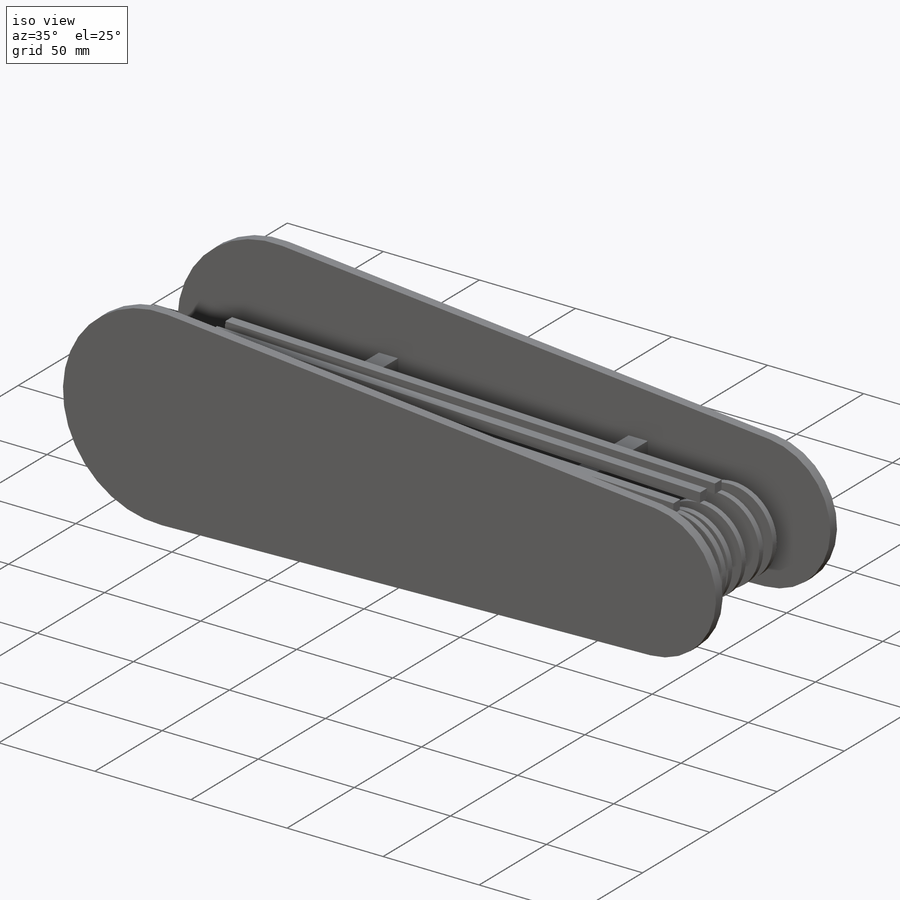
[diagram: iso view]
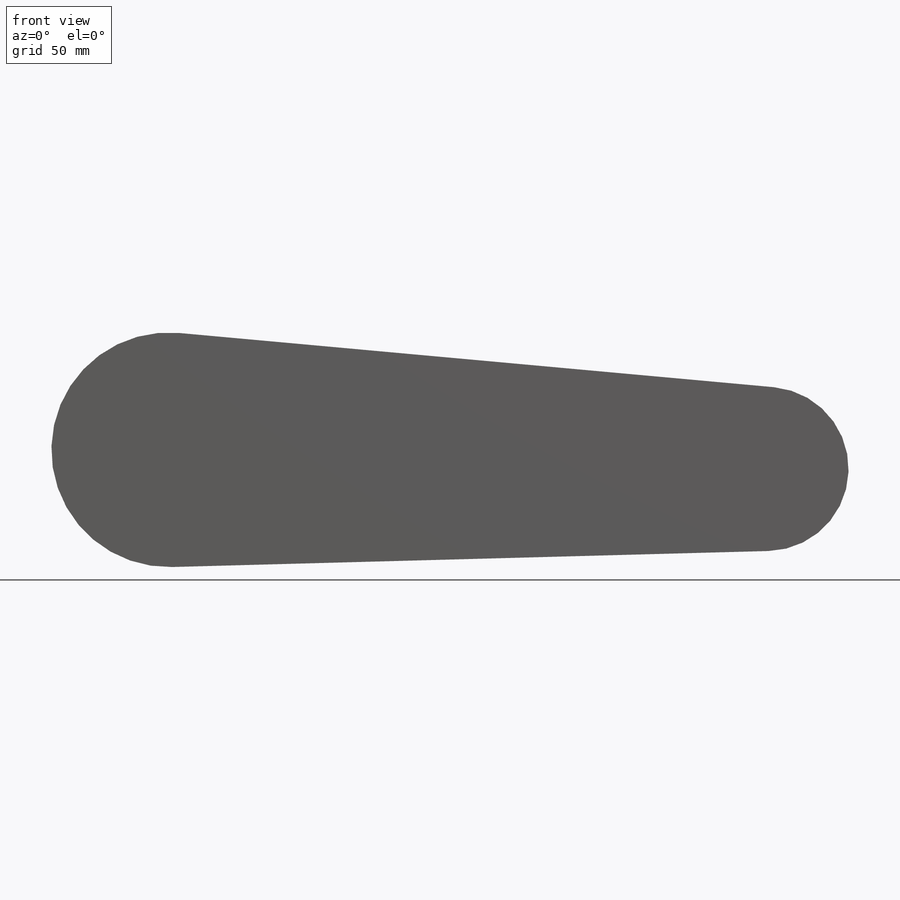
[diagram: front view]
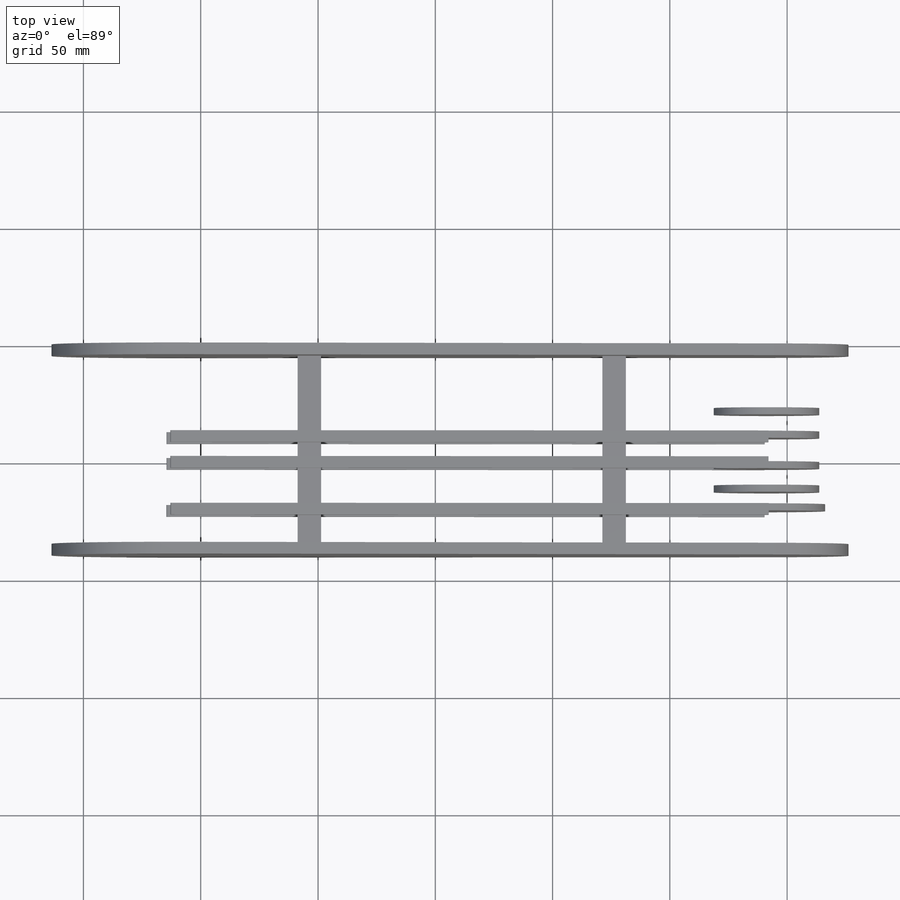
[diagram: top view]
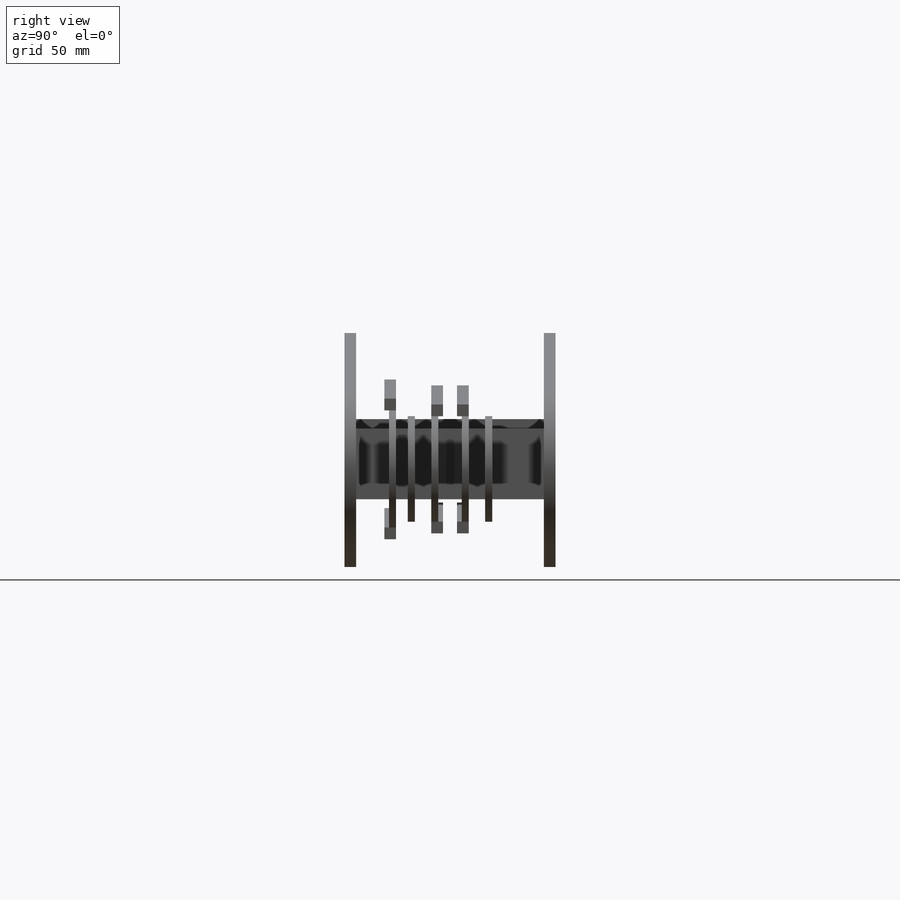
[diagram: right view]
SOLIDWORKS PART (.sldprt)
format: sldprt  version: not decoded by parser v0  size: 501,760 bytes
history: native  units: mm
features: move_body x16, extrude x12, sketch x4, material x1, cut_extrude x1 + 16 further entries (+58 scaffold rows collapsed; 46 parser-record rows omitted)
feature tree (154):
  scaffold x58  (default folders/planes/origin — collapsed)
  material  "1060 Alloy"
  sketch  "Sketch1"  dims[D1=255.0mm]
  extrude  "Boss-Extrude1"  Depth=90mm
  sketch  "Sketch3"  dims[D1=80.0mm]
  cut_extrude  "Cut-Extrude1"  Depth=164mm
  sketch  "Sketch4"  dims[D1=30.0mm]
  extrude  "Boss-Extrude2"  Depth=80mm
  "gear1"
  parser-record x46  (decoder bookkeeping rows leaked as tree rows — omitted from the tree; the rows remain in map.json)
  extrude  "gear12"  [1 undecoded]
  "Axes2"
  extrude  "gear13"  [1 undecoded]
  "Axes3"
  extrude  "gear14"  [1 undecoded]
  "Axes4"
  move_body  "Body-Move/Copy1"
  move_body  "Body-Move/Copy2"
  move_body  "Body-Move/Copy3"
  move_body  "Body-Move/Copy4"
  extrude  "gear2"  [1 undecoded]
  "Axes5"
  move_body  "Body-Move/Copy5"
  extrude  "chain"  [1 undecoded]
  "Axes6"
  sketch  "Sketch5"
  move_body  "Body-Move/Copy6"
  extrude  "chain1"  [1 undecoded]
  "Axes7"
  move_body  "Body-Move/Copy7"
  "Tangent2"
  move_body  "Parallel2"
  extrude  "chain2"  [1 undecoded]
  "Axes8"
  move_body  "Body-Move/Copy8"
  move_body  "Parallel3"
  "Tangent4"
  extrude  "chain3"  [1 undecoded]
  "Axes9"
  move_body  "Body-Move/Copy9"
  move_body  "Parallel4"
  "Tangent5"
  extrude  "chain4"  [1 undecoded]
  "Axes10"
  move_body  "Body-Move/Copy10"
  move_body  "Parallel5"
  "Tangent6"
  extrude  "chain5"  [1 undecoded]
  "Axes11"
  move_body  "Body-Move/Copy11"
  move_body  "Parallel6"
  "Tangent7"
decode coverage: 6 of 33 modeling features carry decoded parameters; 16 rows unclassified (native names shown)
note: 10 parameter values undecoded
summary: no parameter record found for 10 features
note: suppression state not decoded; provenance and decode notes live in map.json
